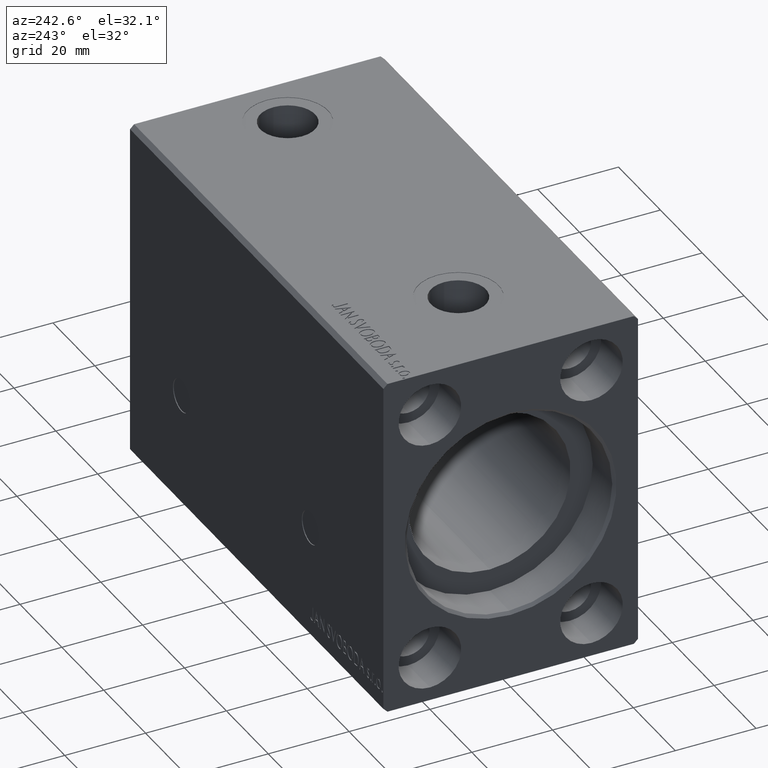
[diagram: clean part render]
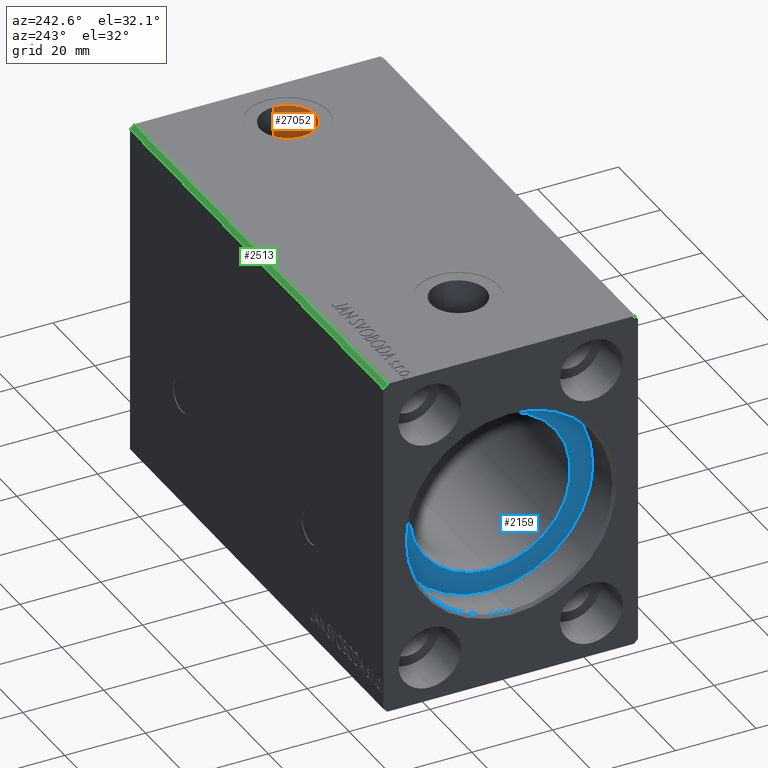
[diagram: same view with three faces highlighted in distinct colors, each labeled with its STEP entity id]
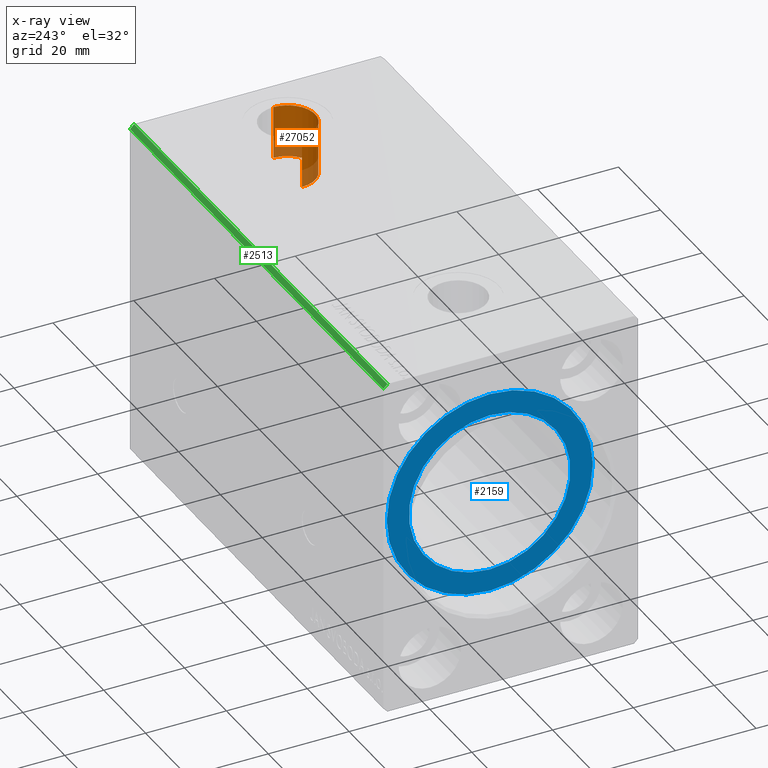
[diagram: x-ray of the same camera — body ghosted, the three highlighted faces saturated]
A machine part, auxiliary view with three faces highlighted in distinct colors.
The next image is the same camera in x-ray (body ghosted, the three faces saturated) — at least one of them is partly hidden behind the body in this view.
Their STEP definitions:

[orange] entity #27052 — the highlighted cylindrical surface (edge-blend (fillet) strip) has radius 6.8 mm, axis along (-0, -0, 1).
#19 = CARTESIAN_POINT ( 'NONE',  ( 106.5000000000000000, 0.000000000000000000, 29.23999999999999488 ) ) ;
#1665 = DIRECTION ( 'NONE',  ( 1.000000000000000000, 0.000000000000000000, 0.000000000000000000 ) ) ;
#1779 = ORIENTED_EDGE ( 'NONE', *, *, #14992, .F. ) ;
#2761 = ORIENTED_EDGE ( 'NONE', *, *, #7295, .T. ) ;
#4283 = EDGE_CURVE ( 'NONE', #36348, #40904, #37463, .T. ) ;
#4315 = CARTESIAN_POINT ( 'NONE',  ( 99.70000000000000284, 8.327598234201995202E-16, 29.23999999999999488 ) ) ;
#5395 = ORIENTED_EDGE ( 'NONE', *, *, #4283, .T. ) ;
#6031 = VECTOR ( 'NONE', #26714, 1000.000000000000000 ) ;
#6109 = CARTESIAN_POINT ( 'NONE',  ( 113.2999999999999972, 0.000000000000000000, 29.23999999999999488 ) ) ;
#7295 = EDGE_CURVE ( 'NONE', #40904, #31444, #38448, .T. ) ;
#10866 = CARTESIAN_POINT ( 'NONE',  ( 113.2999999999999972, 0.000000000000000000, 42.39999999999999147 ) ) ;
#11891 = CARTESIAN_POINT ( 'NONE',  ( 99.70000000000000284, 8.327598234201997174E-16, 29.23999999999999488 ) ) ;
#14913 = DIRECTION ( 'NONE',  ( 0.000000000000000000, 0.000000000000000000, 1.000000000000000000 ) ) ;
#14992 = EDGE_CURVE ( 'NONE', #36348, #24686, #35192, .T. ) ;
#15303 = AXIS2_PLACEMENT_3D ( 'NONE', #15544, #14913, #41974 ) ;
#15544 = CARTESIAN_POINT ( 'NONE',  ( 106.5000000000000000, 0.000000000000000000, 29.23999999999999488 ) ) ;
#15899 = DIRECTION ( 'NONE',  ( 1.000000000000000000, 0.000000000000000000, 0.000000000000000000 ) ) ;
#16165 = AXIS2_PLACEMENT_3D ( 'NONE', #19, #26420, #15899 ) ;
#18182 = DIRECTION ( 'NONE',  ( 0.000000000000000000, 0.000000000000000000, 1.000000000000000000 ) ) ;
#18818 = CARTESIAN_POINT ( 'NONE',  ( 106.5000000000000000, 0.000000000000000000, 42.39999999999999147 ) ) ;
#19901 = EDGE_LOOP ( 'NONE', ( #1779, #5395, #2761, #31326 ) ) ;
#24686 = VERTEX_POINT ( 'NONE', #6109 ) ;
#26420 = DIRECTION ( 'NONE',  ( -0.000000000000000000, -0.000000000000000000, 1.000000000000000000 ) ) ;
#26627 = FACE_OUTER_BOUND ( 'NONE', #19901, .T. ) ;
#26714 = DIRECTION ( 'NONE',  ( -0.000000000000000000, -0.000000000000000000, 1.000000000000000000 ) ) ;
#26917 = LINE ( 'NONE', #36384, #6031 ) ;
#27052 = ADVANCED_FACE ( 'NONE', ( #26627 ), #39732, .F. ) ;
#31326 = ORIENTED_EDGE ( 'NONE', *, *, #33565, .F. ) ;
#31444 = VERTEX_POINT ( 'NONE', #10866 ) ;
#33565 = EDGE_CURVE ( 'NONE', #24686, #31444, #26917, .T. ) ;
#34883 = DIRECTION ( 'NONE',  ( -0.000000000000000000, -0.000000000000000000, 1.000000000000000000 ) ) ;
#35192 = CIRCLE ( 'NONE', #15303, 6.800000000000000711 ) ;
#36348 = VERTEX_POINT ( 'NONE', #4315 ) ;
#36384 = CARTESIAN_POINT ( 'NONE',  ( 113.2999999999999972, 0.000000000000000000, 29.23999999999999488 ) ) ;
#37463 = LINE ( 'NONE', #11891, #40910 ) ;
#38448 = CIRCLE ( 'NONE', #39822, 6.800000000000000711 ) ;
#39732 = CYLINDRICAL_SURFACE ( 'NONE', #16165, 6.800000000000000711 ) ;
#39822 = AXIS2_PLACEMENT_3D ( 'NONE', #18818, #18182, #1665 ) ;
#40904 = VERTEX_POINT ( 'NONE', #40995 ) ;
#40910 = VECTOR ( 'NONE', #34883, 1000.000000000000000 ) ;
#40995 = CARTESIAN_POINT ( 'NONE',  ( 99.70000000000000284, 8.327598234201995202E-16, 42.39999999999999147 ) ) ;
#41974 = DIRECTION ( 'NONE',  ( 1.000000000000000000, 0.000000000000000000, 0.000000000000000000 ) ) ;

[blue] entity #2159 — the highlighted planar face has unit normal (-1, 0, 0).
#1287 = DIRECTION ( 'NONE',  ( -1.000000000000000000, 0.000000000000000000, 0.000000000000000000 ) ) ;
#2159 = ADVANCED_FACE ( 'NONE', ( #6148, #16232 ), #28702, .T. ) ;
#5527 = DIRECTION ( 'NONE',  ( 0.000000000000000000, 0.000000000000000000, 1.000000000000000000 ) ) ;
#6093 = VERTEX_POINT ( 'NONE', #27643 ) ;
#6148 = FACE_BOUND ( 'NONE', #28024, .T. ) ;
#7687 = CIRCLE ( 'NONE', #29610, 20.00000000000000000 ) ;
#8108 = EDGE_CURVE ( 'NONE', #36241, #6093, #25433, .T. ) ;
#8734 = ORIENTED_EDGE ( 'NONE', *, *, #19580, .T. ) ;
#8878 = VERTEX_POINT ( 'NONE', #13750 ) ;
#9663 = ORIENTED_EDGE ( 'NONE', *, *, #11021, .F. ) ;
#11021 = EDGE_CURVE ( 'NONE', #6093, #36241, #7687, .T. ) ;
#11168 = ORIENTED_EDGE ( 'NONE', *, *, #8108, .F. ) ;
#11294 = AXIS2_PLACEMENT_3D ( 'NONE', #35571, #29339, #5527 ) ;
#11393 = EDGE_CURVE ( 'NONE', #21692, #8878, #21370, .T. ) ;
#13225 = AXIS2_PLACEMENT_3D ( 'NONE', #17370, #1287, #27468 ) ;
#13338 = ORIENTED_EDGE ( 'NONE', *, *, #11393, .T. ) ;
#13750 = CARTESIAN_POINT ( 'NONE',  ( 10.00000000000000000, 0.000000000000000000, 25.50000000000000000 ) ) ;
#15222 = DIRECTION ( 'NONE',  ( 0.000000000000000000, 0.000000000000000000, 1.000000000000000000 ) ) ;
#16232 = FACE_OUTER_BOUND ( 'NONE', #40520, .T. ) ;
#17370 = CARTESIAN_POINT ( 'NONE',  ( 10.00000000000000000, 0.000000000000000000, 0.000000000000000000 ) ) ;
#18295 = CARTESIAN_POINT ( 'NONE',  ( 9.999999999999994671, 2.449293598294706513E-15, -20.00000000000000000 ) ) ;
#18443 = CARTESIAN_POINT ( 'NONE',  ( 10.00000000000000000, 0.000000000000000000, 0.000000000000000000 ) ) ;
#19580 = EDGE_CURVE ( 'NONE', #8878, #21692, #20091, .T. ) ;
#20091 = CIRCLE ( 'NONE', #13225, 25.50000000000000000 ) ;
#20258 = DIRECTION ( 'NONE',  ( -1.000000000000000000, 0.000000000000000000, 0.000000000000000000 ) ) ;
#21370 = CIRCLE ( 'NONE', #34422, 25.50000000000000000 ) ;
#21692 = VERTEX_POINT ( 'NONE', #33109 ) ;
#21923 = CARTESIAN_POINT ( 'NONE',  ( 9.999999999999994671, 0.000000000000000000, 0.000000000000000000 ) ) ;
#24730 = DIRECTION ( 'NONE',  ( -1.000000000000000000, 0.000000000000000000, 0.000000000000000000 ) ) ;
#25433 = CIRCLE ( 'NONE', #31609, 20.00000000000000000 ) ;
#26501 = CARTESIAN_POINT ( 'NONE',  ( 9.999999999999994671, 0.000000000000000000, 0.000000000000000000 ) ) ;
#27468 = DIRECTION ( 'NONE',  ( 0.000000000000000000, 0.000000000000000000, 1.000000000000000000 ) ) ;
#27643 = CARTESIAN_POINT ( 'NONE',  ( 9.999999999999994671, 0.000000000000000000, 20.00000000000000000 ) ) ;
#28024 = EDGE_LOOP ( 'NONE', ( #9663, #11168 ) ) ;
#28702 = PLANE ( 'NONE',  #11294 ) ;
#29339 = DIRECTION ( 'NONE',  ( -1.000000000000000000, 0.000000000000000000, 0.000000000000000000 ) ) ;
#29610 = AXIS2_PLACEMENT_3D ( 'NONE', #26501, #20258, #33377 ) ;
#31558 = DIRECTION ( 'NONE',  ( -1.000000000000000000, 0.000000000000000000, 0.000000000000000000 ) ) ;
#31609 = AXIS2_PLACEMENT_3D ( 'NONE', #21923, #24730, #37841 ) ;
#33109 = CARTESIAN_POINT ( 'NONE',  ( 10.00000000000000000, 3.122849337825750222E-15, -25.50000000000000000 ) ) ;
#33377 = DIRECTION ( 'NONE',  ( 0.000000000000000000, 0.000000000000000000, 1.000000000000000000 ) ) ;
#34422 = AXIS2_PLACEMENT_3D ( 'NONE', #18443, #31558, #15222 ) ;
#35571 = CARTESIAN_POINT ( 'NONE',  ( 10.00000000000000000, 0.000000000000000000, 0.000000000000000000 ) ) ;
#36241 = VERTEX_POINT ( 'NONE', #18295 ) ;
#37841 = DIRECTION ( 'NONE',  ( 0.000000000000000000, 0.000000000000000000, 1.000000000000000000 ) ) ;
#40520 = EDGE_LOOP ( 'NONE', ( #8734, #13338 ) ) ;

[green] entity #2513 — the highlighted planar face has unit normal (0, -0.7071, -0.7071).
#78 = DIRECTION ( 'NONE',  ( 0.000000000000000000, -0.7071067811865475727, -0.7071067811865475727 ) ) ;
#284 = PLANE ( 'NONE',  #41514 ) ;
#952 = EDGE_CURVE ( 'NONE', #11044, #29549, #5960, .T. ) ;
#2447 = LINE ( 'NONE', #15522, #22650 ) ;
#2513 = ADVANCED_FACE ( 'NONE', ( #36788 ), #284, .F. ) ;
#3071 = ORIENTED_EDGE ( 'NONE', *, *, #5221, .F. ) ;
#3474 = VERTEX_POINT ( 'NONE', #16767 ) ;
#3726 = CARTESIAN_POINT ( 'NONE',  ( 121.0000000000000000, 31.50000000000001421, 41.49999999999999289 ) ) ;
#5221 = EDGE_CURVE ( 'NONE', #29549, #31128, #31297, .T. ) ;
#5960 = LINE ( 'NONE', #19460, #30483 ) ;
#6179 = EDGE_CURVE ( 'NONE', #11044, #3474, #6794, .T. ) ;
#6794 = LINE ( 'NONE', #32994, #24725 ) ;
#10322 = EDGE_LOOP ( 'NONE', ( #34688, #3071, #16764, #15514 ) ) ;
#11044 = VERTEX_POINT ( 'NONE', #23699 ) ;
#14136 = CARTESIAN_POINT ( 'NONE',  ( 0.000000000000000000, 30.50000000000001421, 42.49999999999999289 ) ) ;
#14973 = CARTESIAN_POINT ( 'NONE',  ( 121.0000000000000000, 30.50000000000001421, 42.49999999999999289 ) ) ;
#15514 = ORIENTED_EDGE ( 'NONE', *, *, #6179, .T. ) ;
#15522 = CARTESIAN_POINT ( 'NONE',  ( 0.000000000000000000, 31.50000000000001421, 41.49999999999999289 ) ) ;
#16764 = ORIENTED_EDGE ( 'NONE', *, *, #952, .F. ) ;
#16767 = CARTESIAN_POINT ( 'NONE',  ( 0.000000000000000000, 31.50000000000001421, 41.49999999999999289 ) ) ;
#19460 = CARTESIAN_POINT ( 'NONE',  ( 121.0000000000000000, 31.50000000000001421, 41.49999999999999289 ) ) ;
#20024 = DIRECTION ( 'NONE',  ( 0.000000000000000000, 0.7071067811865474617, -0.7071067811865474617 ) ) ;
#22650 = VECTOR ( 'NONE', #38934, 1000.000000000000114 ) ;
#22896 = DIRECTION ( 'NONE',  ( 0.000000000000000000, -0.7071067811865474617, 0.7071067811865474617 ) ) ;
#23699 = CARTESIAN_POINT ( 'NONE',  ( 121.0000000000000000, 31.50000000000001421, 41.49999999999999289 ) ) ;
#24725 = VECTOR ( 'NONE', #33631, 1000.000000000000000 ) ;
#24832 = CARTESIAN_POINT ( 'NONE',  ( 121.0000000000000000, 30.50000000000001421, 42.49999999999999289 ) ) ;
#28102 = VECTOR ( 'NONE', #41181, 1000.000000000000000 ) ;
#29549 = VERTEX_POINT ( 'NONE', #24832 ) ;
#30483 = VECTOR ( 'NONE', #22896, 1000.000000000000114 ) ;
#31128 = VERTEX_POINT ( 'NONE', #14136 ) ;
#31297 = LINE ( 'NONE', #14973, #28102 ) ;
#32994 = CARTESIAN_POINT ( 'NONE',  ( 121.0000000000000000, 31.50000000000001421, 41.49999999999999289 ) ) ;
#33631 = DIRECTION ( 'NONE',  ( -1.000000000000000000, -0.000000000000000000, -0.000000000000000000 ) ) ;
#34688 = ORIENTED_EDGE ( 'NONE', *, *, #41475, .T. ) ;
#36788 = FACE_OUTER_BOUND ( 'NONE', #10322, .T. ) ;
#38934 = DIRECTION ( 'NONE',  ( 0.000000000000000000, -0.7071067811865474617, 0.7071067811865474617 ) ) ;
#41181 = DIRECTION ( 'NONE',  ( -1.000000000000000000, -0.000000000000000000, -0.000000000000000000 ) ) ;
#41475 = EDGE_CURVE ( 'NONE', #3474, #31128, #2447, .T. ) ;
#41514 = AXIS2_PLACEMENT_3D ( 'NONE', #3726, #78, #20024 ) ;